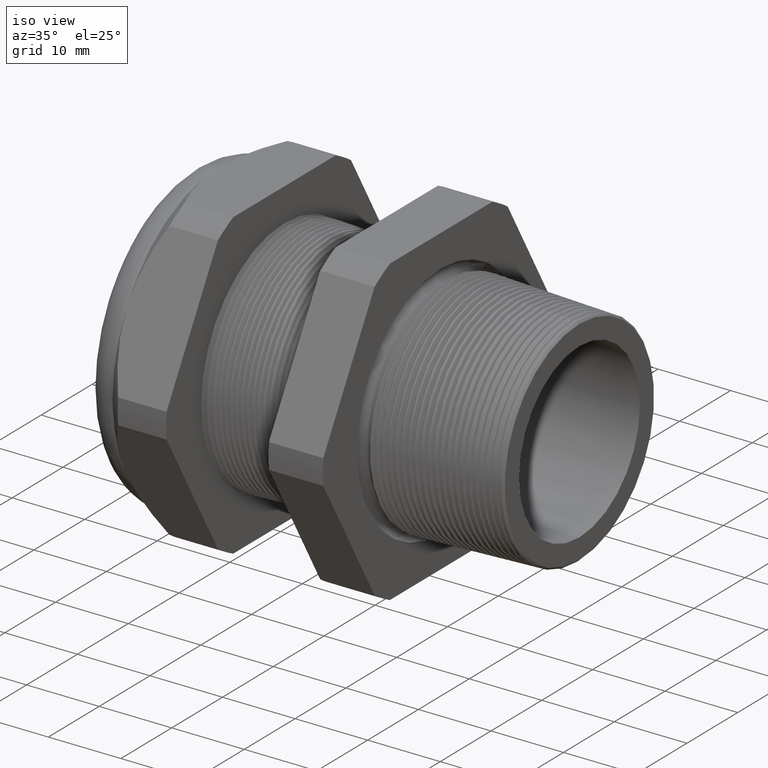
[diagram: clean part render]
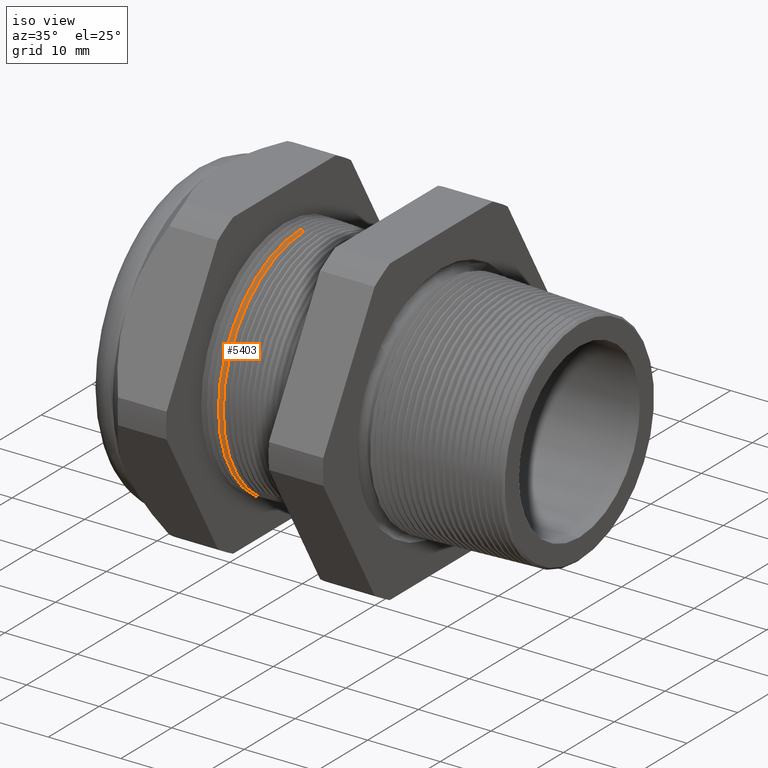
[diagram: same view with one face highlighted and labeled with its STEP entity id]
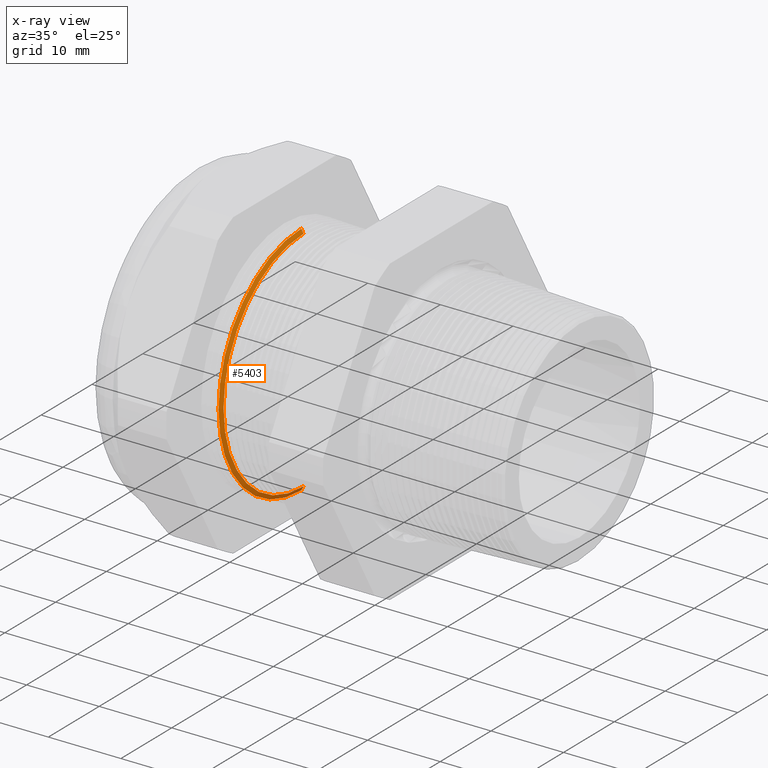
[diagram: x-ray of the same camera — body ghosted, the highlighted face saturated]
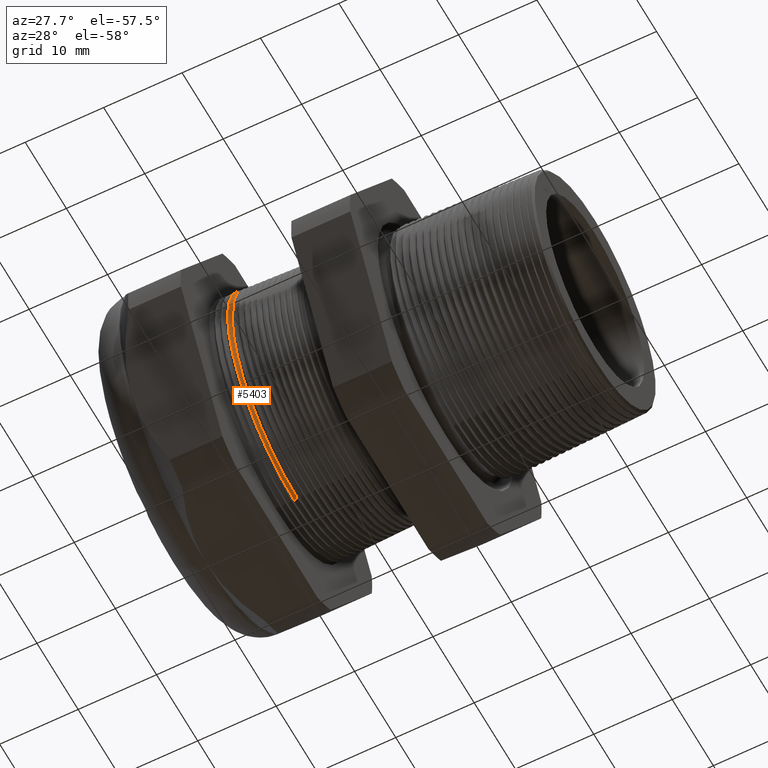
[diagram: same view with one face highlighted and labeled with its STEP entity id]
A machine part, iso view. The second image highlights one B-rep face of the part: STEP entity #5403.
The next image is the same camera in x-ray: the body ghosted, the highlighted face saturated — about 5% of this face is hidden behind the body in this view.
A second angle (auxiliary view) of the same face is appended — the face is thin or edge-on in the first view.
In plain terms, the highlighted conical surface has half-angle 62 deg.
Its self-contained STEP definition (entity closure, byte-faithful):
#2357 = VERTEX_POINT ( 'NONE', #2660 ) ;
#2359 = EDGE_CURVE ( 'NONE', #2368, #2357, #2659, .T. ) ;
#2362 = VERTEX_POINT ( 'NONE', #2714 ) ;
#2368 = VERTEX_POINT ( 'NONE', #2701 ) ;
#2369 = VERTEX_POINT ( 'NONE', #2700 ) ;
#2374 = EDGE_CURVE ( 'NONE', #2362, #2369, #2752, .T. ) ;
#2659 = LINE ( 'NONE', #2722, #2721 ) ;
#2660 = CARTESIAN_POINT ( 'NONE',  ( -1.068612252018004800, 0.0000000000000000000, 0.6417976708507949800 ) ) ;
#2700 = CARTESIAN_POINT ( 'NONE',  ( -1.068612252018004800, 7.860638614568180500E-017, -0.6417976708507949800 ) ) ;
#2701 = CARTESIAN_POINT ( 'NONE',  ( -1.056762483972355700, 0.0000000000000000000, 0.6195114984791282300 ) ) ;
#2714 = CARTESIAN_POINT ( 'NONE',  ( -1.056762483972355700, 7.723291184775487000E-017, -0.6195114984791282300 ) ) ;
#2720 = DIRECTION ( 'NONE',  ( -0.4694715627859001900, 0.0000000000000000000, 0.8829475928589217700 ) ) ;
#2721 = VECTOR ( 'NONE', #2720, 39.37007874015748900 ) ;
#2722 = CARTESIAN_POINT ( 'NONE',  ( -1.070314960629921600, 0.0000000000000000000, 0.6449999999999999100 ) ) ;
#2749 = DIRECTION ( 'NONE',  ( -0.4694715627859001900, 1.081298943409538900E-016, -0.8829475928589217700 ) ) ;
#2750 = VECTOR ( 'NONE', #2749, 39.37007874015748900 ) ;
#2751 = CARTESIAN_POINT ( 'NONE',  ( -1.070314960629921600, 7.898971854500428000E-017, -0.6449999999999999100 ) ) ;
#2752 = LINE ( 'NONE', #2751, #2750 ) ;
#3439 = DIRECTION ( 'NONE',  ( 0.0000000000000000000, 0.0000000000000000000, 1.000000000000000000 ) ) ;
#3440 = DIRECTION ( 'NONE',  ( 1.000000000000000000, 0.0000000000000000000, 0.0000000000000000000 ) ) ;
#3441 = CARTESIAN_POINT ( 'NONE',  ( -1.068612252018004800, 0.0000000000000000000, 0.0000000000000000000 ) ) ;
#3442 = AXIS2_PLACEMENT_3D ( 'NONE', #3441, #3440, #3439 ) ;
#3443 = CIRCLE ( 'NONE', #3442, 0.6417976708507949800 ) ;
#3999 = FACE_OUTER_BOUND ( 'NONE', #5404, .T. ) ;
#4050 = DIRECTION ( 'NONE',  ( 0.0000000000000000000, 0.0000000000000000000, -1.000000000000000000 ) ) ;
#4051 = DIRECTION ( 'NONE',  ( 1.000000000000000000, 0.0000000000000000000, 0.0000000000000000000 ) ) ;
#4052 = CARTESIAN_POINT ( 'NONE',  ( -1.056762483972355700, 0.0000000000000000000, 0.0000000000000000000 ) ) ;
#4053 = AXIS2_PLACEMENT_3D ( 'NONE', #4052, #4051, #4050 ) ;
#4054 = DIRECTION ( 'NONE',  ( 0.0000000000000000000, 0.0000000000000000000, 1.000000000000000000 ) ) ;
#4055 = DIRECTION ( 'NONE',  ( -1.000000000000000000, 0.0000000000000000000, 0.0000000000000000000 ) ) ;
#4056 = CARTESIAN_POINT ( 'NONE',  ( -1.070314960629921600, 0.0000000000000000000, 0.0000000000000000000 ) ) ;
#4057 = AXIS2_PLACEMENT_3D ( 'NONE', #4056, #4055, #4054 ) ;
#4058 = CIRCLE ( 'NONE', #4053, 0.6195114984791282300 ) ;
#4059 = CONICAL_SURFACE ( 'NONE', #4057, 0.6449999999999999100, 1.082104136236473600 ) ;
#5026 = EDGE_CURVE ( 'NONE', #2357, #2369, #3443, .T. ) ;
#5403 = ADVANCED_FACE ( 'NONE', ( #3999 ), #4059, .T. ) ;
#5404 = EDGE_LOOP ( 'NONE', ( #5405, #5406, #5408, #5409 ) ) ;
#5405 = ORIENTED_EDGE ( 'NONE', *, *, #2374, .F. ) ;
#5406 = ORIENTED_EDGE ( 'NONE', *, *, #5407, .F. ) ;
#5407 = EDGE_CURVE ( 'NONE', #2368, #2362, #4058, .T. ) ;
#5408 = ORIENTED_EDGE ( 'NONE', *, *, #2359, .T. ) ;
#5409 = ORIENTED_EDGE ( 'NONE', *, *, #5026, .T. ) ;